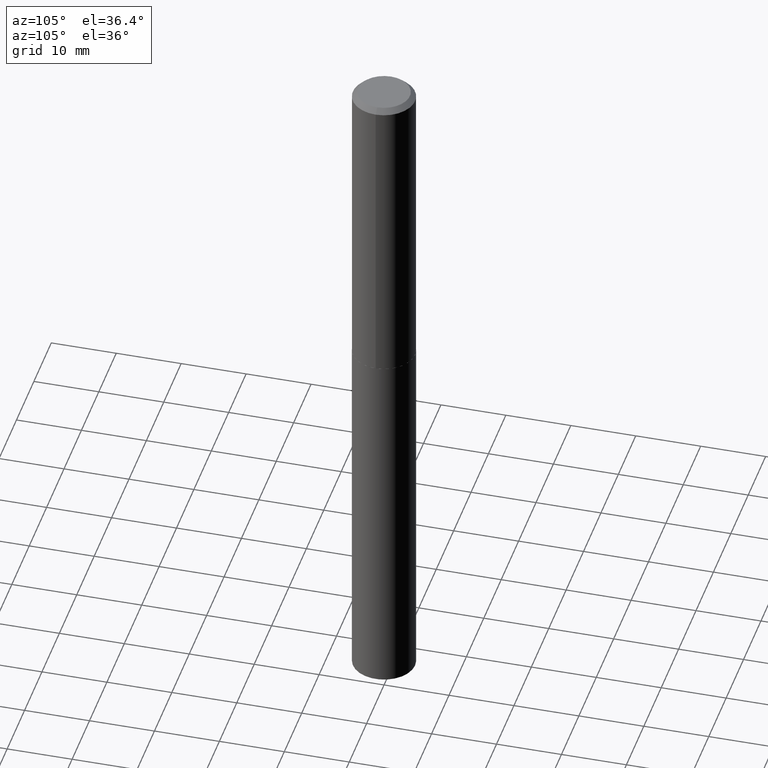
[diagram: clean part render]
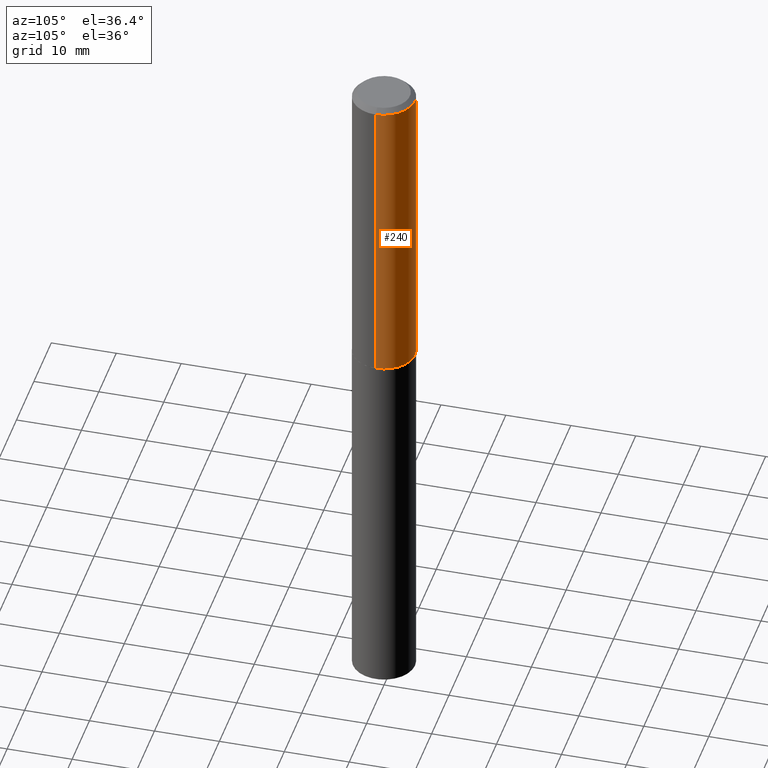
[diagram: same view with one face highlighted and labeled with its STEP entity id]
A machine part, auxiliary view. The second image highlights one B-rep face of the part: STEP entity #240.
In plain terms, the highlighted cylindrical surface (edge-blend (fillet) strip) has radius 4.7879 mm, axis along (-0, 0, 1).
Its self-contained STEP definition (entity closure, byte-faithful):
#25 = CARTESIAN_POINT ( 'NONE',  ( -0.1885000000000002784, -5.212391675431369628E-15, -1.876499999999999613 ) ) ;
#26 = CARTESIAN_POINT ( 'NONE',  ( 4.588922214806407281E-29, -6.551764732339160851E-15, -1.876499999999999613 ) ) ;
#45 = DIRECTION ( 'NONE',  ( 1.000000000000000000, -6.982962677686266711E-15, 4.876176775795935232E-29 ) ) ;
#58 = EDGE_LOOP ( 'NONE', ( #382, #82, #237, #86 ) ) ;
#68 = VECTOR ( 'NONE', #260, 39.37007874015748143 ) ;
#78 = CARTESIAN_POINT ( 'NONE',  ( -0.1885000000000001674, 1.339373056907790040E-15, -9.272192645130504778E-30 ) ) ;
#82 = ORIENTED_EDGE ( 'NONE', *, *, #218, .T. ) ;
#85 = VECTOR ( 'NONE', #315, 39.37007874015748143 ) ;
#86 = ORIENTED_EDGE ( 'NONE', *, *, #205, .F. ) ;
#95 = EDGE_CURVE ( 'NONE', #246, #333, #202, .T. ) ;
#132 = CARTESIAN_POINT ( 'NONE',  ( 0.1885000000000002784, -7.868053197083025029E-15, -1.876499999999999613 ) ) ;
#138 = CIRCLE ( 'NONE', #318, 0.1885000000000002784 ) ;
#142 = VERTEX_POINT ( 'NONE', #132 ) ;
#145 = CYLINDRICAL_SURFACE ( 'NONE', #386, 0.1885000000000001674 ) ;
#165 = CARTESIAN_POINT ( 'NONE',  ( 0.1885000000000000286, -1.425397256582710518E-15, -0.03125000000000023592 ) ) ;
#194 = CARTESIAN_POINT ( 'NONE',  ( 0.1885000000000001674, -1.316288464743862403E-15, 9.191593222375346424E-30 ) ) ;
#198 = LINE ( 'NONE', #194, #85 ) ;
#200 = DIRECTION ( 'NONE',  ( -2.445468806185136597E-29, 3.491481338843145583E-15, 1.000000000000000000 ) ) ;
#202 = CIRCLE ( 'NONE', #385, 0.1885000000000000286 ) ;
#205 = EDGE_CURVE ( 'NONE', #142, #246, #198, .T. ) ;
#218 = EDGE_CURVE ( 'NONE', #316, #333, #346, .T. ) ;
#237 = ORIENTED_EDGE ( 'NONE', *, *, #95, .F. ) ;
#240 = ADVANCED_FACE ( 'NONE', ( #294 ), #145, .T. ) ;
#246 = VERTEX_POINT ( 'NONE', #165 ) ;
#260 = DIRECTION ( 'NONE',  ( -2.445468806185136877E-29, 3.491481338843145188E-15, 1.000000000000000000 ) ) ;
#280 = DIRECTION ( 'NONE',  ( 1.000000000000000000, -6.982962677686266711E-15, 0.000000000000000000 ) ) ;
#283 = CARTESIAN_POINT ( 'NONE',  ( 7.642090019328610544E-31, -1.091087918388491376E-16, -0.03125000000000023592 ) ) ;
#289 = DIRECTION ( 'NONE',  ( -2.445468806185136597E-29, 3.491481338843145583E-15, 1.000000000000000000 ) ) ;
#294 = FACE_OUTER_BOUND ( 'NONE', #58, .T. ) ;
#296 = CARTESIAN_POINT ( 'NONE',  ( -0.1885000000000000286, -1.991063705181214147E-15, -0.03125000000000023592 ) ) ;
#305 = DIRECTION ( 'NONE',  ( -2.445468806185136597E-29, 3.491481338843145583E-15, 1.000000000000000000 ) ) ;
#315 = DIRECTION ( 'NONE',  ( -2.445468806185136877E-29, 3.491481338843145188E-15, 1.000000000000000000 ) ) ;
#316 = VERTEX_POINT ( 'NONE', #25 ) ;
#318 = AXIS2_PLACEMENT_3D ( 'NONE', #26, #200, #359 ) ;
#333 = VERTEX_POINT ( 'NONE', #296 ) ;
#342 = CARTESIAN_POINT ( 'NONE',  ( 0.000000000000000000, 0.000000000000000000, 0.000000000000000000 ) ) ;
#346 = LINE ( 'NONE', #78, #68 ) ;
#359 = DIRECTION ( 'NONE',  ( 1.000000000000000000, -6.982962677686268288E-15, 0.000000000000000000 ) ) ;
#371 = EDGE_CURVE ( 'NONE', #142, #316, #138, .T. ) ;
#382 = ORIENTED_EDGE ( 'NONE', *, *, #371, .T. ) ;
#385 = AXIS2_PLACEMENT_3D ( 'NONE', #283, #305, #280 ) ;
#386 = AXIS2_PLACEMENT_3D ( 'NONE', #342, #289, #45 ) ;